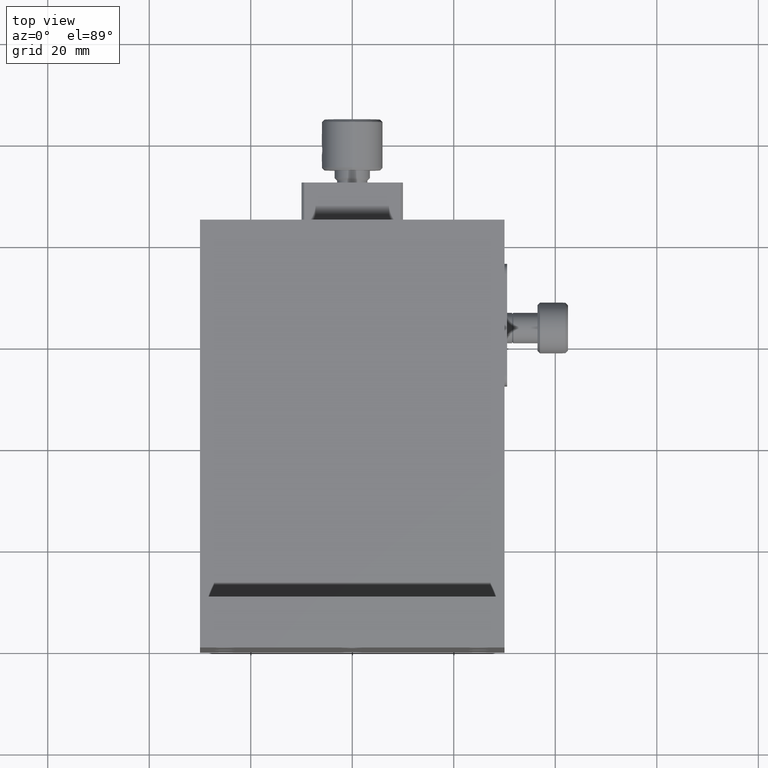
[diagram: clean part render]
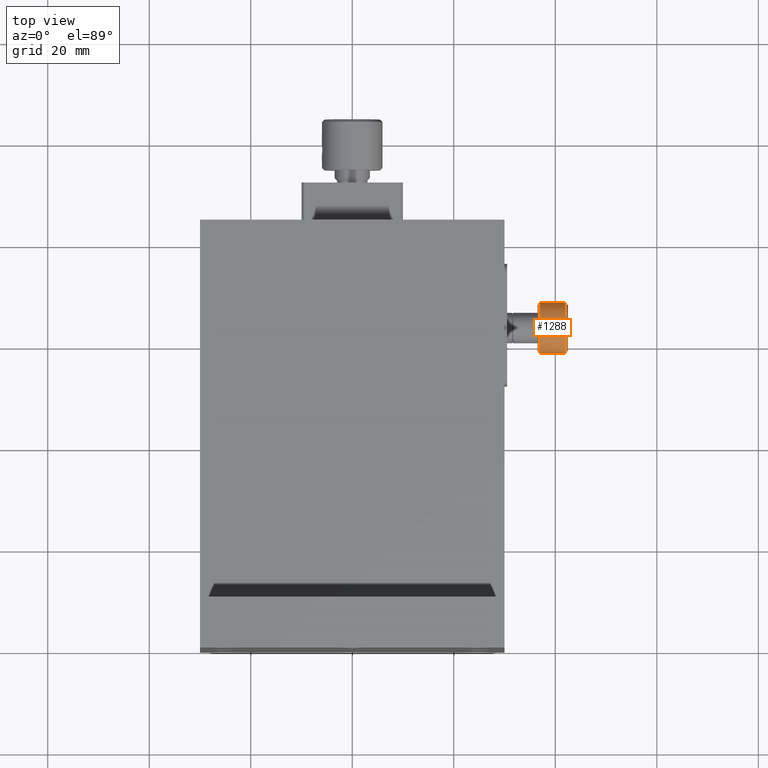
[diagram: same view with one face highlighted and labeled with its STEP entity id]
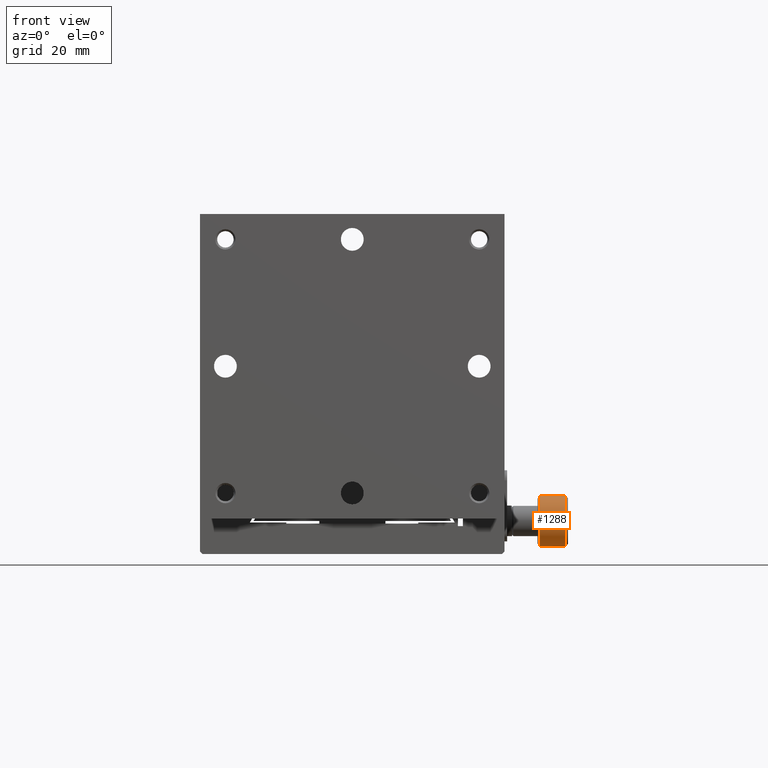
[diagram: same view with one face highlighted and labeled with its STEP entity id]
A machine part, top view. The second image highlights one B-rep face of the part: STEP entity #1288.
A second angle (front view) of the same face is appended — the face is thin or edge-on in the first view.
In plain terms, the highlighted cylindrical surface (bore or boss wall) has radius 5 mm, axis along (1, 0, 0).
Its self-contained STEP definition (entity closure, byte-faithful):
#22 = CARTESIAN_POINT ( 'NONE',  ( 41.50000000000000000, 59.03613054160366858, -11.09999999999999964 ) ) ;
#88 = EDGE_CURVE ( 'NONE', #480, #480, #1243, .T. ) ;
#129 = DIRECTION ( 'NONE',  ( 1.000000000000000000, 0.000000000000000000, 0.000000000000000000 ) ) ;
#171 = DIRECTION ( 'NONE',  ( 1.000000000000000000, 0.000000000000000000, 0.000000000000000000 ) ) ;
#244 = DIRECTION ( 'NONE',  ( 0.000000000000000000, 1.000000000000000000, 0.000000000000000000 ) ) ;
#247 = VECTOR ( 'NONE', #4753, 1000.000000000000000 ) ;
#308 = DIRECTION ( 'NONE',  ( -1.000000000000000000, -0.000000000000000000, -0.000000000000000000 ) ) ;
#480 = VERTEX_POINT ( 'NONE', #5397 ) ;
#506 = FACE_OUTER_BOUND ( 'NONE', #6721, .T. ) ;
#669 = CARTESIAN_POINT ( 'NONE',  ( 37.00000000000000711, 64.00000000000000000, -10.50000000000000000 ) ) ;
#742 = DIRECTION ( 'NONE',  ( -1.000000000000000000, -0.000000000000000000, -0.000000000000000000 ) ) ;
#767 = ORIENTED_EDGE ( 'NONE', *, *, #3150, .T. ) ;
#888 = AXIS2_PLACEMENT_3D ( 'NONE', #669, #129, #6204 ) ;
#892 = AXIS2_PLACEMENT_3D ( 'NONE', #4440, #4006, #244 ) ;
#986 = ORIENTED_EDGE ( 'NONE', *, *, #4703, .T. ) ;
#1001 = ORIENTED_EDGE ( 'NONE', *, *, #2025, .T. ) ;
#1243 = CIRCLE ( 'NONE', #888, 4.999999999999990230 ) ;
#1288 = ADVANCED_FACE ( 'NONE', ( #3784, #506 ), #6005, .T. ) ;
#1797 = EDGE_CURVE ( 'NONE', #6970, #3299, #4131, .T. ) ;
#1840 = EDGE_CURVE ( 'NONE', #4616, #5232, #3514, .T. ) ;
#1878 = DIRECTION ( 'NONE',  ( 0.000000000000000000, 1.000000000000000000, 0.000000000000000000 ) ) ;
#1895 = AXIS2_PLACEMENT_3D ( 'NONE', #2472, #6889, #1878 ) ;
#2025 = EDGE_CURVE ( 'NONE', #6953, #7073, #5907, .T. ) ;
#2040 = CARTESIAN_POINT ( 'NONE',  ( 41.50000000000000000, 59.03613054160366858, -9.900000000000000355 ) ) ;
#2148 = ORIENTED_EDGE ( 'NONE', *, *, #1797, .T. ) ;
#2320 = DIRECTION ( 'NONE',  ( 1.000000000000000000, 0.000000000000000000, 0.000000000000000000 ) ) ;
#2472 = CARTESIAN_POINT ( 'NONE',  ( 42.00000000000000000, 64.00000000000000000, -10.50000000000000000 ) ) ;
#2556 = LINE ( 'NONE', #2040, #247 ) ;
#2832 = ORIENTED_EDGE ( 'NONE', *, *, #5020, .F. ) ;
#2923 = DIRECTION ( 'NONE',  ( 0.000000000000000000, 1.000000000000000000, 0.000000000000000000 ) ) ;
#2931 = CARTESIAN_POINT ( 'NONE',  ( 42.00000000000183320, 68.96386945839815041, -9.900000000000000355 ) ) ;
#2997 = CARTESIAN_POINT ( 'NONE',  ( 42.00000000000364508, 59.03613054160366858, -9.900000000000000355 ) ) ;
#2998 = VERTEX_POINT ( 'NONE', #3527 ) ;
#3124 = CARTESIAN_POINT ( 'NONE',  ( 42.00000000000000000, 64.00000000000000000, -10.50000000000000000 ) ) ;
#3150 = EDGE_CURVE ( 'NONE', #3297, #6970, #4686, .T. ) ;
#3297 = VERTEX_POINT ( 'NONE', #2997 ) ;
#3299 = VERTEX_POINT ( 'NONE', #6958 ) ;
#3365 = CARTESIAN_POINT ( 'NONE',  ( 42.00000000000183320, 59.03613054160184959, -11.09999999999999964 ) ) ;
#3380 = VECTOR ( 'NONE', #742, 1000.000000000000000 ) ;
#3416 = CIRCLE ( 'NONE', #5264, 4.999999999999990230 ) ;
#3477 = CARTESIAN_POINT ( 'NONE',  ( 41.50000000000000000, 68.96386945839633142, -11.09999999999999964 ) ) ;
#3514 = LINE ( 'NONE', #3477, #3609 ) ;
#3527 = CARTESIAN_POINT ( 'NONE',  ( 41.50000000000000000, 59.03613054160366858, -9.900000000000000355 ) ) ;
#3605 = CARTESIAN_POINT ( 'NONE',  ( 41.50000000000000000, 64.00000000000000000, -10.50000000000000000 ) ) ;
#3609 = VECTOR ( 'NONE', #171, 1000.000000000000000 ) ;
#3784 = FACE_OUTER_BOUND ( 'NONE', #4847, .T. ) ;
#4006 = DIRECTION ( 'NONE',  ( 1.000000000000000000, 0.000000000000000000, 0.000000000000000000 ) ) ;
#4131 = LINE ( 'NONE', #6359, #3380 ) ;
#4152 = CARTESIAN_POINT ( 'NONE',  ( 42.00000000000364508, 68.96386945839633142, -11.09999999999999964 ) ) ;
#4440 = CARTESIAN_POINT ( 'NONE',  ( 42.50000000000000000, 64.00000000000000000, -10.50000000000000000 ) ) ;
#4469 = CIRCLE ( 'NONE', #5282, 4.999999999999990230 ) ;
#4562 = AXIS2_PLACEMENT_3D ( 'NONE', #3124, #5338, #4800 ) ;
#4572 = CARTESIAN_POINT ( 'NONE',  ( 41.50000000000000000, 68.96386945839633142, -11.09999999999999964 ) ) ;
#4616 = VERTEX_POINT ( 'NONE', #4572 ) ;
#4667 = ORIENTED_EDGE ( 'NONE', *, *, #5667, .F. ) ;
#4686 = CIRCLE ( 'NONE', #4562, 4.999999999999990230 ) ;
#4702 = ORIENTED_EDGE ( 'NONE', *, *, #5207, .T. ) ;
#4703 = EDGE_CURVE ( 'NONE', #2998, #3297, #2556, .T. ) ;
#4753 = DIRECTION ( 'NONE',  ( 1.000000000000000000, 0.000000000000000000, 0.000000000000000000 ) ) ;
#4800 = DIRECTION ( 'NONE',  ( 0.000000000000000000, 1.000000000000000000, 0.000000000000000000 ) ) ;
#4847 = EDGE_LOOP ( 'NONE', ( #4879 ) ) ;
#4879 = ORIENTED_EDGE ( 'NONE', *, *, #88, .T. ) ;
#4895 = VECTOR ( 'NONE', #308, 1000.000000000000000 ) ;
#5020 = EDGE_CURVE ( 'NONE', #4616, #3299, #4469, .T. ) ;
#5032 = CARTESIAN_POINT ( 'NONE',  ( 41.50000000000000000, 64.00000000000000000, -10.50000000000000000 ) ) ;
#5207 = EDGE_CURVE ( 'NONE', #5232, #6953, #6554, .T. ) ;
#5232 = VERTEX_POINT ( 'NONE', #4152 ) ;
#5264 = AXIS2_PLACEMENT_3D ( 'NONE', #3605, #2320, #6886 ) ;
#5282 = AXIS2_PLACEMENT_3D ( 'NONE', #5032, #6855, #2923 ) ;
#5338 = DIRECTION ( 'NONE',  ( -1.000000000000000000, -0.000000000000000000, -0.000000000000000000 ) ) ;
#5397 = CARTESIAN_POINT ( 'NONE',  ( 37.00000000000000711, 68.99999999999998579, -10.50000000000000000 ) ) ;
#5667 = EDGE_CURVE ( 'NONE', #2998, #7073, #3416, .T. ) ;
#5787 = ORIENTED_EDGE ( 'NONE', *, *, #1840, .T. ) ;
#5907 = LINE ( 'NONE', #6014, #4895 ) ;
#6005 = CYLINDRICAL_SURFACE ( 'NONE', #892, 4.999999999999990230 ) ;
#6014 = CARTESIAN_POINT ( 'NONE',  ( 41.50000000000000000, 59.03613054160366858, -11.09999999999999964 ) ) ;
#6204 = DIRECTION ( 'NONE',  ( 0.000000000000000000, 1.000000000000000000, 0.000000000000000000 ) ) ;
#6359 = CARTESIAN_POINT ( 'NONE',  ( 41.50000000000000000, 68.96386945839633142, -9.900000000000000355 ) ) ;
#6554 = CIRCLE ( 'NONE', #1895, 4.999999999999990230 ) ;
#6721 = EDGE_LOOP ( 'NONE', ( #2832, #5787, #4702, #1001, #4667, #986, #767, #2148 ) ) ;
#6855 = DIRECTION ( 'NONE',  ( 1.000000000000000000, 0.000000000000000000, 0.000000000000000000 ) ) ;
#6886 = DIRECTION ( 'NONE',  ( 0.000000000000000000, 1.000000000000000000, 0.000000000000000000 ) ) ;
#6889 = DIRECTION ( 'NONE',  ( -1.000000000000000000, -0.000000000000000000, -0.000000000000000000 ) ) ;
#6953 = VERTEX_POINT ( 'NONE', #3365 ) ;
#6958 = CARTESIAN_POINT ( 'NONE',  ( 41.50000000000000000, 68.96386945839633142, -9.900000000000000355 ) ) ;
#6970 = VERTEX_POINT ( 'NONE', #2931 ) ;
#7073 = VERTEX_POINT ( 'NONE', #22 ) ;